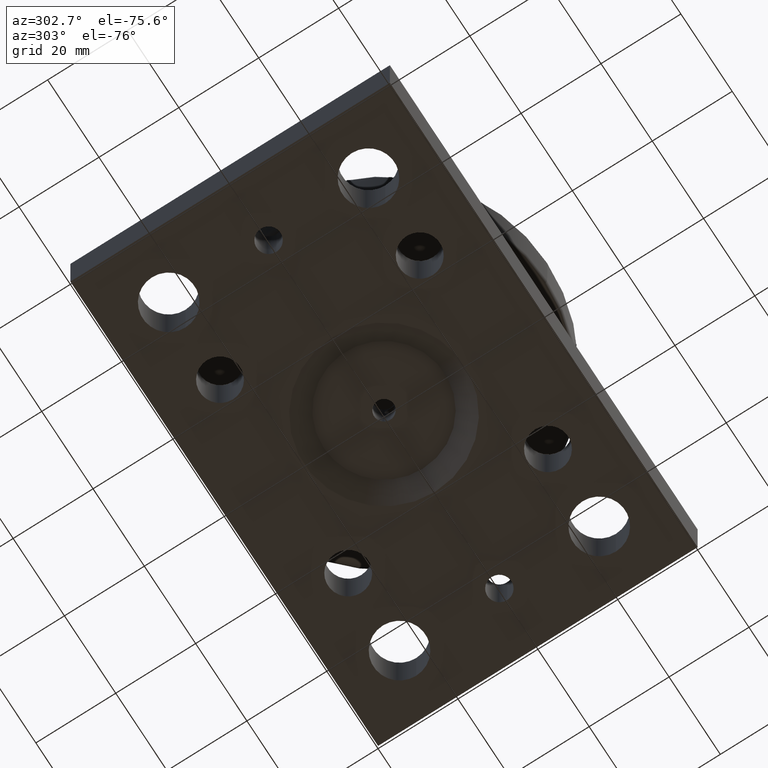
[diagram: clean part render]
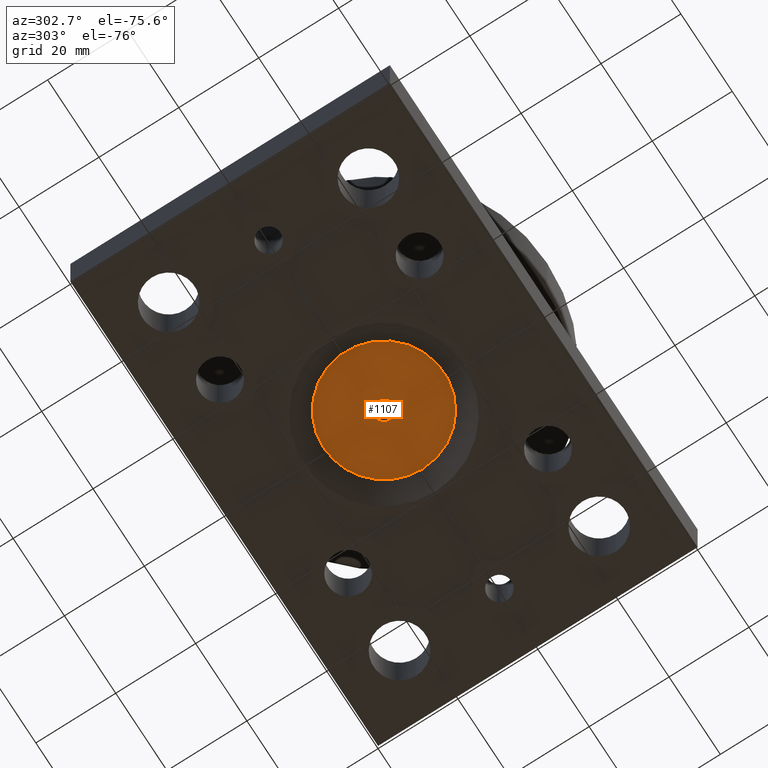
[diagram: same view with one face highlighted and labeled with its STEP entity id]
A machine part, auxiliary view. The second image highlights one B-rep face of the part: STEP entity #1107.
In plain terms, the highlighted planar face has unit normal (0, 0, -1).
Its self-contained STEP definition (entity closure, byte-faithful):
#68=FACE_BOUND('',#279,.T.);
#80=CIRCLE('',#1180,15.1132486540519);
#81=CIRCLE('',#1181,15.1132486540519);
#107=CIRCLE('',#1224,2.4585);
#108=CIRCLE('',#1225,2.4585);
#191=FACE_OUTER_BOUND('',#278,.T.);
#278=EDGE_LOOP('',(#915,#916));
#279=EDGE_LOOP('',(#917,#918));
#497=VERTEX_POINT('',#1778);
#498=VERTEX_POINT('',#1780);
#532=VERTEX_POINT('',#1880);
#533=VERTEX_POINT('',#1881);
#622=EDGE_CURVE('',#498,#497,#80,.T.);
#623=EDGE_CURVE('',#497,#498,#81,.T.);
#671=EDGE_CURVE('',#532,#533,#107,.T.);
#672=EDGE_CURVE('',#533,#532,#108,.T.);
#915=ORIENTED_EDGE('',*,*,#622,.T.);
#916=ORIENTED_EDGE('',*,*,#623,.T.);
#917=ORIENTED_EDGE('',*,*,#671,.T.);
#918=ORIENTED_EDGE('',*,*,#672,.T.);
#1062=PLANE('',#1223);
#1107=ADVANCED_FACE('',(#191,#68),#1062,.T.);
#1180=AXIS2_PLACEMENT_3D('',#1781,#1380,#1381);
#1181=AXIS2_PLACEMENT_3D('',#1782,#1382,#1383);
#1223=AXIS2_PLACEMENT_3D('',#1879,#1488,#1489);
#1224=AXIS2_PLACEMENT_3D('',#1882,#1490,#1491);
#1225=AXIS2_PLACEMENT_3D('',#1883,#1492,#1493);
#1380=DIRECTION('center_axis',(0.,0.,-1.));
#1381=DIRECTION('ref_axis',(-1.05234409917076E-16,1.,1.05234409917076E-16));
#1382=DIRECTION('center_axis',(0.,0.,-1.));
#1383=DIRECTION('ref_axis',(-1.05234409917076E-16,1.,1.05234409917076E-16));
#1488=DIRECTION('center_axis',(0.,0.,-1.));
#1489=DIRECTION('ref_axis',(-1.,-1.05234409917076E-16,0.));
#1490=DIRECTION('center_axis',(0.,0.,1.));
#1491=DIRECTION('ref_axis',(-1.,-1.05234409917076E-16,0.));
#1492=DIRECTION('center_axis',(0.,0.,1.));
#1493=DIRECTION('ref_axis',(-1.,-1.05234409917076E-16,0.));
#1778=CARTESIAN_POINT('',(75.1132486540518,40.,3.50000000000001));
#1780=CARTESIAN_POINT('',(60.,55.1132486540519,3.5));
#1781=CARTESIAN_POINT('Origin',(60.,40.,3.5));
#1782=CARTESIAN_POINT('Origin',(60.,40.,3.5));
#1879=CARTESIAN_POINT('Origin',(60.,47.5566243270259,3.5));
#1880=CARTESIAN_POINT('',(57.5415,40.,3.5));
#1881=CARTESIAN_POINT('',(62.4585,40.,3.5));
#1882=CARTESIAN_POINT('Origin',(60.,40.,3.5));
#1883=CARTESIAN_POINT('Origin',(60.,40.,3.5));